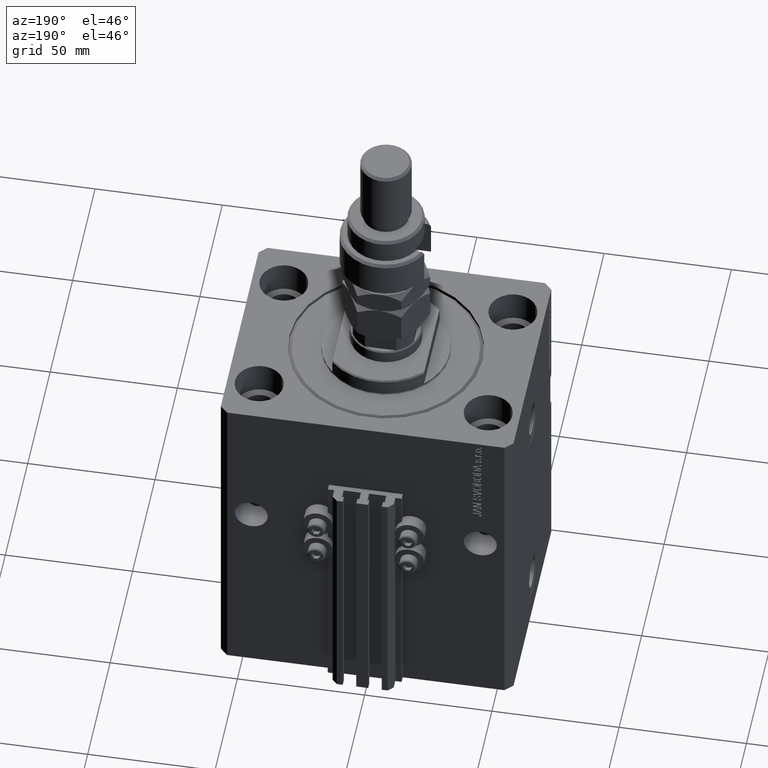
[diagram: clean part render]
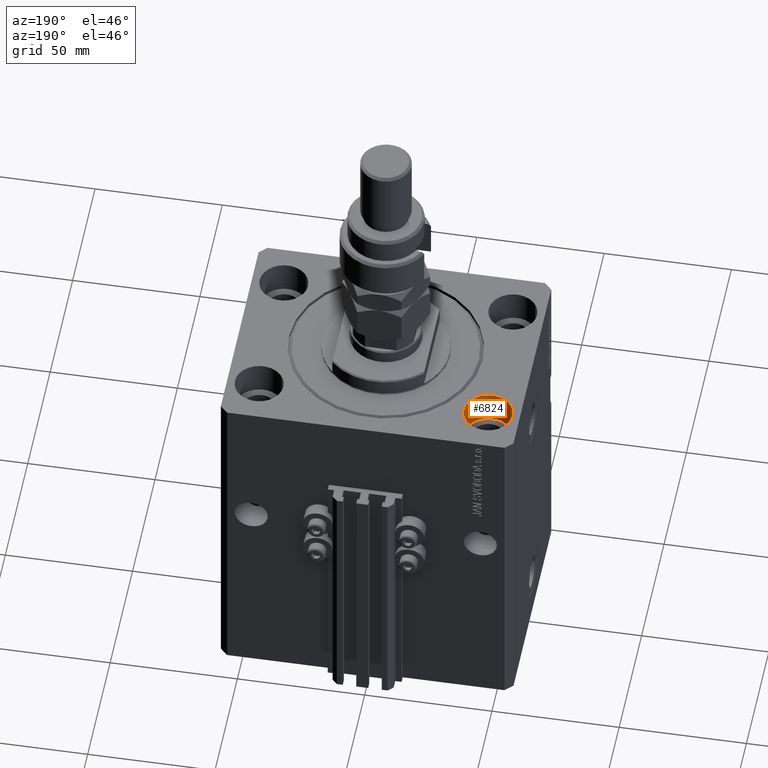
[diagram: same view with one face highlighted and labeled with its STEP entity id]
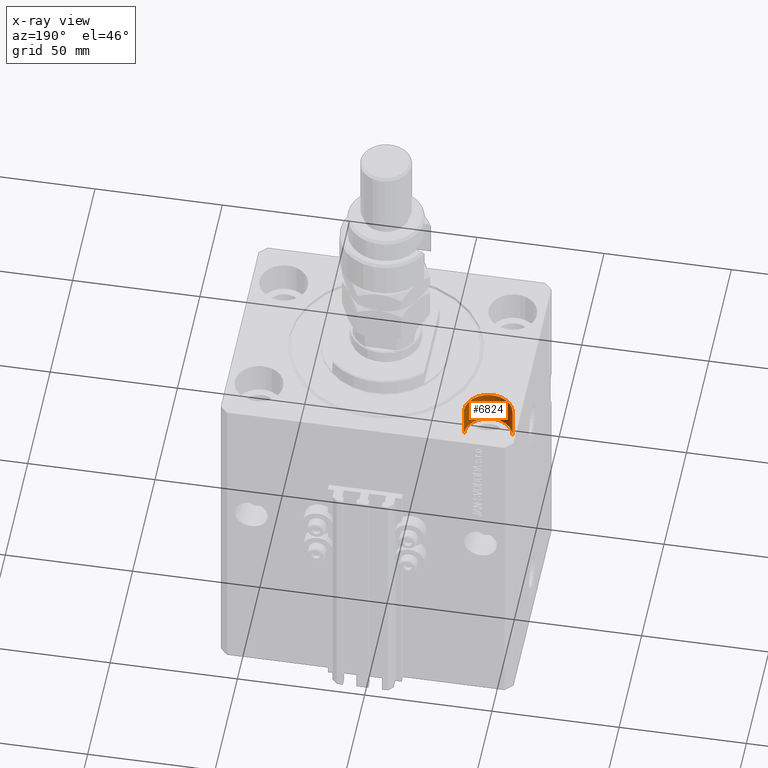
[diagram: x-ray of the same camera — body ghosted, the highlighted face saturated]
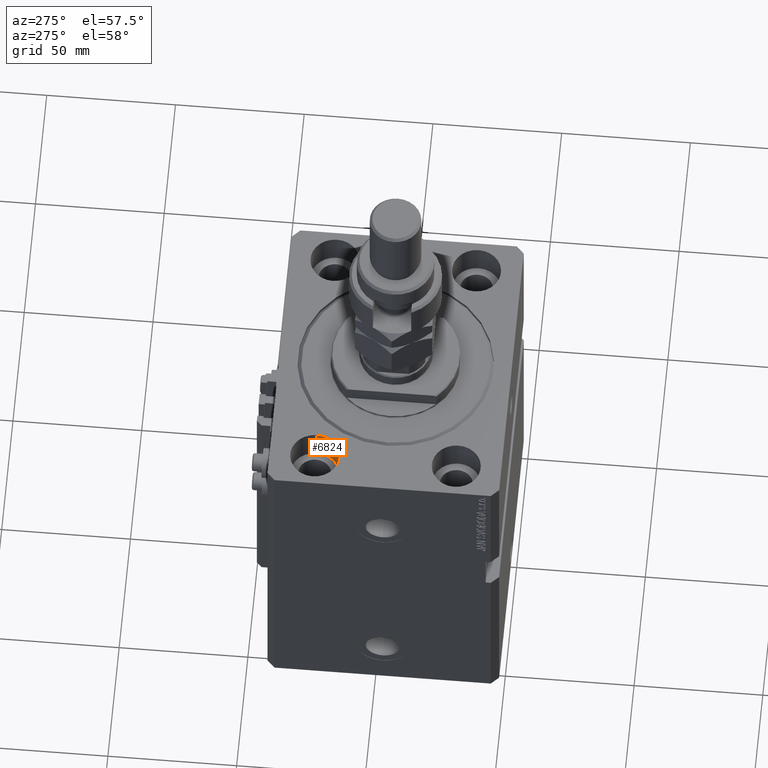
[diagram: same view with one face highlighted and labeled with its STEP entity id]
A machine part, auxiliary view. The second image highlights one B-rep face of the part: STEP entity #6824.
The next image is the same camera in x-ray: the body ghosted, the highlighted face saturated — about 0% of this face is hidden behind the body in this view.
A second angle (auxiliary view) of the same face is appended — the face is thin or edge-on in the first view.
In plain terms, the highlighted cylindrical surface (edge-blend (fillet) strip) has radius 9.5 mm, axis along (0, 0, 1).
Its self-contained STEP definition (entity closure, byte-faithful):
#1625 = CARTESIAN_POINT ( 'NONE',  ( -35.50000000000000000, 27.50000000000000355, -13.00000000000000000 ) ) ;
#3203 = EDGE_CURVE ( 'NONE', #5605, #10429, #12840, .T. ) ;
#5028 = LINE ( 'NONE', #1625, #32015 ) ;
#5103 = EDGE_CURVE ( 'NONE', #5643, #15802, #5028, .T. ) ;
#5263 = DIRECTION ( 'NONE',  ( -0.000000000000000000, -0.000000000000000000, 1.000000000000000000 ) ) ;
#5605 = VERTEX_POINT ( 'NONE', #15115 ) ;
#5643 = VERTEX_POINT ( 'NONE', #38775 ) ;
#6824 = ADVANCED_FACE ( 'NONE', ( #43249 ), #39343, .F. ) ;
#7913 = CIRCLE ( 'NONE', #25358, 9.500000000000001776 ) ;
#8420 = CARTESIAN_POINT ( 'NONE',  ( -54.50000000000000000, 27.50000000000000355, -13.00000000000000000 ) ) ;
#10429 = VERTEX_POINT ( 'NONE', #14463 ) ;
#12840 = LINE ( 'NONE', #8420, #51131 ) ;
#13008 = DIRECTION ( 'NONE',  ( 1.000000000000000000, 0.000000000000000000, 0.000000000000000000 ) ) ;
#14145 = ORIENTED_EDGE ( 'NONE', *, *, #43031, .F. ) ;
#14463 = CARTESIAN_POINT ( 'NONE',  ( -54.50000000000000000, 27.50000000000000355, 0.000000000000000000 ) ) ;
#15115 = CARTESIAN_POINT ( 'NONE',  ( -54.50000000000000000, 27.50000000000000355, -13.00000000000000000 ) ) ;
#15802 = VERTEX_POINT ( 'NONE', #19564 ) ;
#16211 = AXIS2_PLACEMENT_3D ( 'NONE', #18405, #26475, #42318 ) ;
#17256 = ORIENTED_EDGE ( 'NONE', *, *, #3203, .T. ) ;
#18405 = CARTESIAN_POINT ( 'NONE',  ( -45.00000000000000000, 27.50000000000000355, -13.00000000000000000 ) ) ;
#19564 = CARTESIAN_POINT ( 'NONE',  ( -35.50000000000000000, 27.50000000000000355, 0.000000000000000000 ) ) ;
#22872 = ORIENTED_EDGE ( 'NONE', *, *, #5103, .F. ) ;
#24035 = CARTESIAN_POINT ( 'NONE',  ( -45.00000000000000000, 27.50000000000000355, -13.00000000000000000 ) ) ;
#25358 = AXIS2_PLACEMENT_3D ( 'NONE', #41090, #41351, #13008 ) ;
#26475 = DIRECTION ( 'NONE',  ( 0.000000000000000000, 0.000000000000000000, 1.000000000000000000 ) ) ;
#28742 = DIRECTION ( 'NONE',  ( -0.000000000000000000, -0.000000000000000000, 1.000000000000000000 ) ) ;
#32015 = VECTOR ( 'NONE', #28742, 1000.000000000000000 ) ;
#35449 = ORIENTED_EDGE ( 'NONE', *, *, #40554, .T. ) ;
#38616 = CIRCLE ( 'NONE', #16211, 9.500000000000001776 ) ;
#38775 = CARTESIAN_POINT ( 'NONE',  ( -35.50000000000000000, 27.50000000000000355, -13.00000000000000000 ) ) ;
#39090 = DIRECTION ( 'NONE',  ( -0.000000000000000000, -0.000000000000000000, 1.000000000000000000 ) ) ;
#39343 = CYLINDRICAL_SURFACE ( 'NONE', #42005, 9.500000000000001776 ) ;
#39869 = DIRECTION ( 'NONE',  ( 1.000000000000000000, 0.000000000000000000, 0.000000000000000000 ) ) ;
#40554 = EDGE_CURVE ( 'NONE', #10429, #15802, #7913, .T. ) ;
#41090 = CARTESIAN_POINT ( 'NONE',  ( -45.00000000000000000, 27.50000000000000355, 0.000000000000000000 ) ) ;
#41351 = DIRECTION ( 'NONE',  ( 0.000000000000000000, 0.000000000000000000, 1.000000000000000000 ) ) ;
#42005 = AXIS2_PLACEMENT_3D ( 'NONE', #24035, #39090, #39869 ) ;
#42318 = DIRECTION ( 'NONE',  ( 1.000000000000000000, 0.000000000000000000, 0.000000000000000000 ) ) ;
#43031 = EDGE_CURVE ( 'NONE', #5605, #5643, #38616, .T. ) ;
#43249 = FACE_OUTER_BOUND ( 'NONE', #46192, .T. ) ;
#46192 = EDGE_LOOP ( 'NONE', ( #14145, #17256, #35449, #22872 ) ) ;
#51131 = VECTOR ( 'NONE', #5263, 1000.000000000000000 ) ;